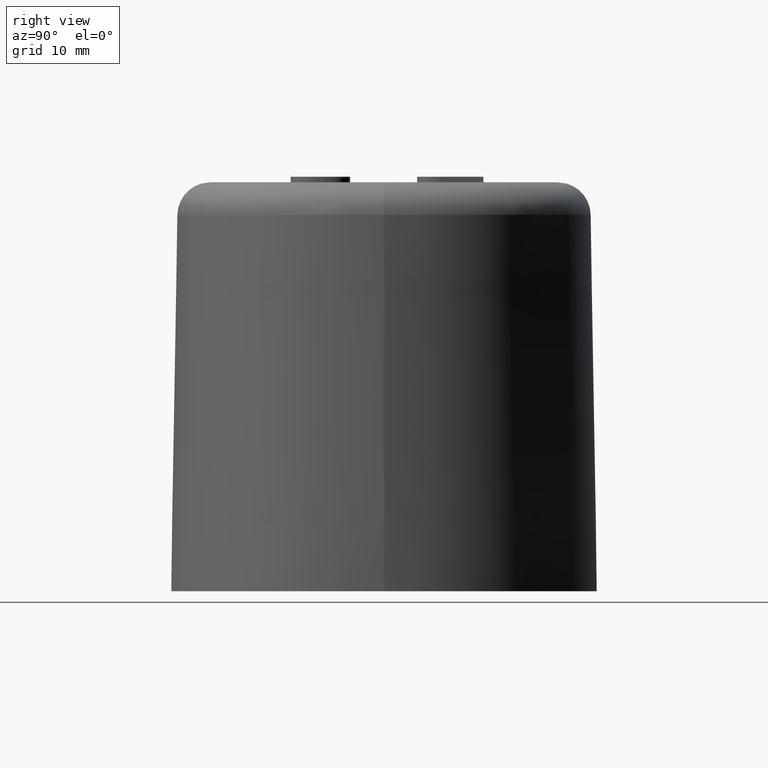
[diagram: clean part render]
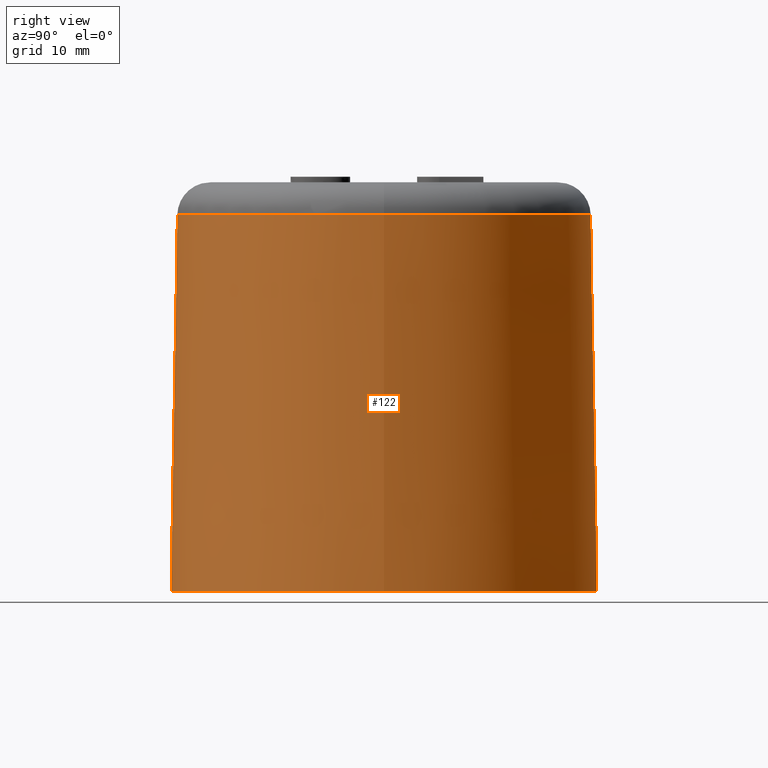
[diagram: same view with one face highlighted and labeled with its STEP entity id]
A machine part, right view. The second image highlights one B-rep face of the part: STEP entity #122.
In plain terms, the highlighted conical surface has half-angle 1 deg.
Its self-contained STEP definition (entity closure, byte-faithful):
#122 = ADVANCED_FACE( '', ( #258, #259 ), #260, .T. );
#258 = FACE_BOUND( '', #423, .T. );
#259 = FACE_OUTER_BOUND( '', #424, .T. );
#260 = CONICAL_SURFACE( '', #425, 19.3057682923316, 0.0174532925199433 );
#423 = EDGE_LOOP( '', ( #892 ) );
#424 = EDGE_LOOP( '', ( #893 ) );
#425 = AXIS2_PLACEMENT_3D( '', #894, #895, #896 );
#892 = ORIENTED_EDGE( '', *, *, #1226, .F. );
#893 = ORIENTED_EDGE( '', *, *, #1144, .T. );
#894 = CARTESIAN_POINT( '', ( -1.69948271264483E-030, 0.000000000000000, 2.77555756156289E-014 ) );
#895 = DIRECTION( '', ( 6.12303176911189E-017, 0.000000000000000, -1.00000000000000 ) );
#896 = DIRECTION( '', ( -1.00000000000000, 0.000000000000000, -6.12303176911189E-017 ) );
#1144 = EDGE_CURVE( '', #1356, #1356, #1357, .T. );
#1226 = EDGE_CURVE( '', #1488, #1488, #1489, .T. );
#1356 = VERTEX_POINT( '', #1756 );
#1357 = CIRCLE( '', #1757, 19.3057682923316 );
#1488 = VERTEX_POINT( '', #2064 );
#1489 = CIRCLE( '', #2065, 18.7113821861097 );
#1756 = CARTESIAN_POINT( '', ( 19.3057682923316, 0.000000000000000, 2.89376739414395E-014 ) );
#1757 = AXIS2_PLACEMENT_3D( '', #2182, #2183, #2184 );
#2064 = CARTESIAN_POINT( '', ( 18.7113821861097, 0.000000000000000, 34.0523572193118 ) );
#2065 = AXIS2_PLACEMENT_3D( '', #2262, #2263, #2264 );
#2182 = CARTESIAN_POINT( '', ( -1.69948271264483E-030, 0.000000000000000, 2.77555756156289E-014 ) );
#2183 = DIRECTION( '', ( -6.12303176911189E-017, 0.000000000000000, 1.00000000000000 ) );
#2184 = DIRECTION( '', ( 1.00000000000000, 0.000000000000000, 6.12303176911189E-017 ) );
#2262 = CARTESIAN_POINT( '', ( -2.08503665066993E-015, 0.000000000000000, 34.0523572193118 ) );
#2263 = DIRECTION( '', ( -6.12303176911189E-017, 0.000000000000000, 1.00000000000000 ) );
#2264 = DIRECTION( '', ( 1.00000000000000, 0.000000000000000, 6.12303176911189E-017 ) );